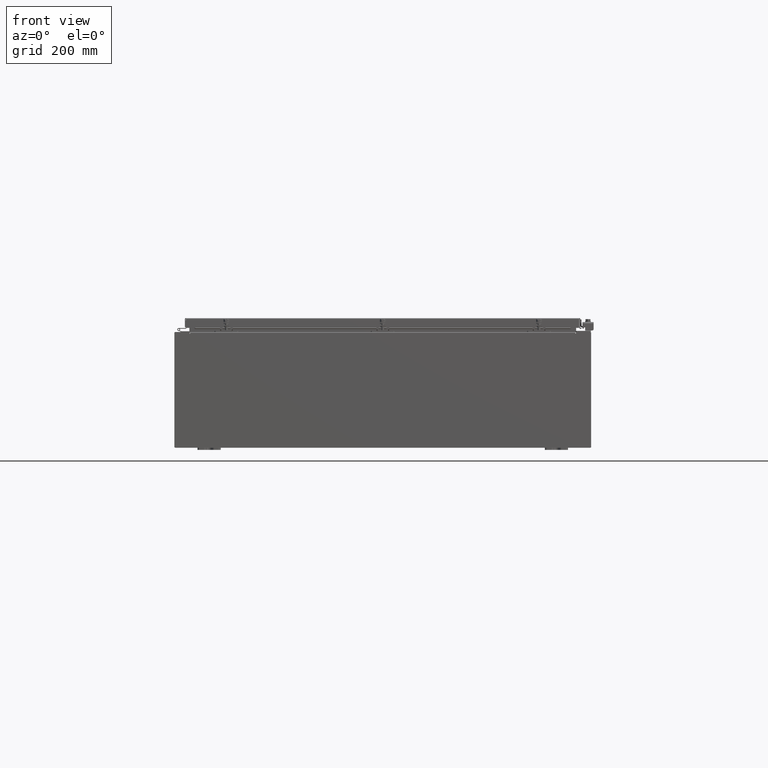
[diagram: clean part render]
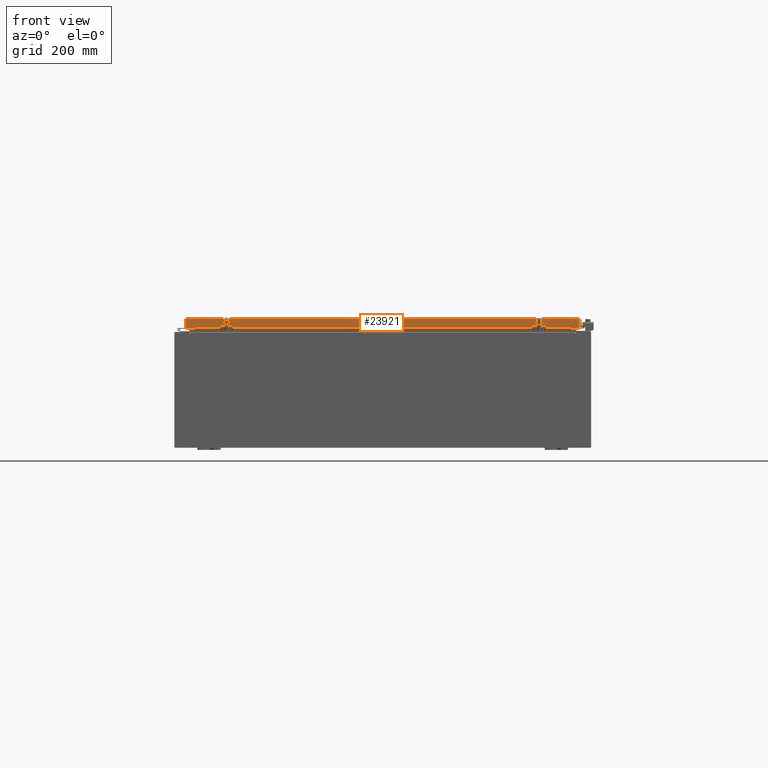
[diagram: same view with one face highlighted and labeled with its STEP entity id]
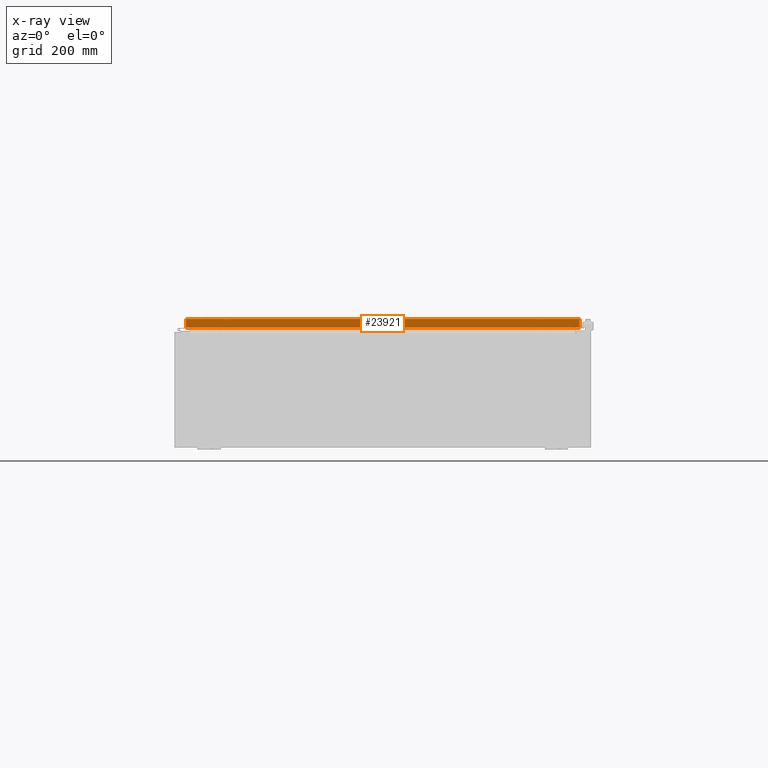
[diagram: x-ray of the same camera — body ghosted, the highlighted face saturated]
A machine part, front view. The second image highlights one B-rep face of the part: STEP entity #23921.
The next image is the same camera in x-ray: the body ghosted, the highlighted face saturated — about 0% of this face is hidden behind the body in this view.
In plain terms, the highlighted planar face has unit normal (-0, 1, -0).
Its self-contained STEP definition (entity closure, byte-faithful):
#566 = DIRECTION ( 'NONE',  ( -1.000000000000000000, -8.758115402030108600E-047, 1.239713195391617400E-016 ) ) ;
#632 = CARTESIAN_POINT ( 'NONE',  ( 16.98915786437626700, -23.09400000000000500, -0.8499999999999999800 ) ) ;
#1551 = LINE ( 'NONE', #54206, #47018 ) ;
#3233 = ORIENTED_EDGE ( 'NONE', *, *, #32373, .F. ) ;
#4286 = VERTEX_POINT ( 'NONE', #34360 ) ;
#4858 = CARTESIAN_POINT ( 'NONE',  ( 17.07799999999999900, -23.09400000000000500, -0.8499999999999999800 ) ) ;
#5052 = VECTOR ( 'NONE', #32687, 39.37007874015748100 ) ;
#5960 = PLANE ( 'NONE',  #10257 ) ;
#6012 = CARTESIAN_POINT ( 'NONE',  ( 16.23915786437626400, -23.09400000000000500, -0.8500000000000043100 ) ) ;
#6404 = LINE ( 'NONE', #19797, #5052 ) ;
#6905 = DIRECTION ( 'NONE',  ( 1.000000000000000000, 6.989207801985715800E-031, -3.922586267643549700E-045 ) ) ;
#7701 = ORIENTED_EDGE ( 'NONE', *, *, #36173, .F. ) ;
#10235 = DIRECTION ( 'NONE',  ( -6.989207801985715000E-031, 1.000000000000000000, -5.637761885544720300E-015 ) ) ;
#10257 = AXIS2_PLACEMENT_3D ( 'NONE', #31499, #10235, #40160 ) ;
#12019 = ORIENTED_EDGE ( 'NONE', *, *, #54825, .T. ) ;
#15520 = VERTEX_POINT ( 'NONE', #31500 ) ;
#16648 = VERTEX_POINT ( 'NONE', #6012 ) ;
#17676 = CARTESIAN_POINT ( 'NONE',  ( -16.98915786437627100, -23.09400000000000100, 1.311287036958846300E-013 ) ) ;
#17743 = EDGE_CURVE ( 'NONE', #4286, #18331, #33739, .T. ) ;
#18331 = VERTEX_POINT ( 'NONE', #632 ) ;
#18665 = EDGE_CURVE ( 'NONE', #18331, #16648, #1551, .T. ) ;
#19797 = CARTESIAN_POINT ( 'NONE',  ( 16.23915786437626700, -23.09400000000000500, -0.8500000000000043100 ) ) ;
#21345 = ORIENTED_EDGE ( 'NONE', *, *, #17743, .F. ) ;
#22356 = VECTOR ( 'NONE', #26969, 39.37007874015748100 ) ;
#23739 = EDGE_CURVE ( 'NONE', #39133, #15520, #53273, .T. ) ;
#23921 = ADVANCED_FACE ( 'NONE', ( #41217 ), #5960, .F. ) ;
#26263 = DIRECTION ( 'NONE',  ( 0.0000000000000000000, -5.637761885544720300E-015, -1.000000000000000000 ) ) ;
#26969 = DIRECTION ( 'NONE',  ( -0.0000000000000000000, -5.637761885544720300E-015, -1.000000000000000000 ) ) ;
#27744 = ORIENTED_EDGE ( 'NONE', *, *, #23739, .F. ) ;
#29496 = LINE ( 'NONE', #45379, #50910 ) ;
#30196 = VERTEX_POINT ( 'NONE', #33578 ) ;
#31499 = CARTESIAN_POINT ( 'NONE',  ( 0.0000000000000000000, -23.09400000000000100, 1.311287036958846300E-013 ) ) ;
#31500 = CARTESIAN_POINT ( 'NONE',  ( -16.98915786437626700, -23.09400000000000500, -0.8499999999999955400 ) ) ;
#32373 = EDGE_CURVE ( 'NONE', #30196, #4286, #29496, .T. ) ;
#32687 = DIRECTION ( 'NONE',  ( -1.000000000000000000, 0.0000000000000000000, 0.0000000000000000000 ) ) ;
#33578 = CARTESIAN_POINT ( 'NONE',  ( -16.98915786437626700, -23.09400000000000100, -0.08769999999999589200 ) ) ;
#33739 = LINE ( 'NONE', #39728, #22356 ) ;
#34360 = CARTESIAN_POINT ( 'NONE',  ( 16.98915786437626700, -23.09400000000000100, -0.08769999999999589200 ) ) ;
#34947 = CARTESIAN_POINT ( 'NONE',  ( -16.23915786437626700, -23.09400000000000500, -0.8500000000000043100 ) ) ;
#36173 = EDGE_CURVE ( 'NONE', #16648, #39133, #6404, .T. ) ;
#39133 = VERTEX_POINT ( 'NONE', #34947 ) ;
#39728 = CARTESIAN_POINT ( 'NONE',  ( 16.98915786437626700, -23.09400000000000100, -0.07470000000000015500 ) ) ;
#40160 = DIRECTION ( 'NONE',  ( 0.0000000000000000000, 5.637761885544720300E-015, 1.000000000000000000 ) ) ;
#40883 = VECTOR ( 'NONE', #26263, 39.37007874015748100 ) ;
#41010 = ORIENTED_EDGE ( 'NONE', *, *, #18665, .F. ) ;
#41217 = FACE_OUTER_BOUND ( 'NONE', #47280, .T. ) ;
#45379 = CARTESIAN_POINT ( 'NONE',  ( 17.07799999999999900, -23.09400000000000100, -0.08769999999999589200 ) ) ;
#47018 = VECTOR ( 'NONE', #49938, 39.37007874015748100 ) ;
#47280 = EDGE_LOOP ( 'NONE', ( #3233, #12019, #27744, #7701, #41010, #21345 ) ) ;
#49243 = VECTOR ( 'NONE', #566, 39.37007874015748100 ) ;
#49938 = DIRECTION ( 'NONE',  ( -1.000000000000000000, -8.758115402030108600E-047, 1.239713195391617400E-016 ) ) ;
#50910 = VECTOR ( 'NONE', #6905, 39.37007874015748100 ) ;
#53273 = LINE ( 'NONE', #4858, #49243 ) ;
#53602 = LINE ( 'NONE', #17676, #40883 ) ;
#54206 = CARTESIAN_POINT ( 'NONE',  ( 17.07799999999999900, -23.09400000000000500, -0.8499999999999999800 ) ) ;
#54825 = EDGE_CURVE ( 'NONE', #30196, #15520, #53602, .T. ) ;